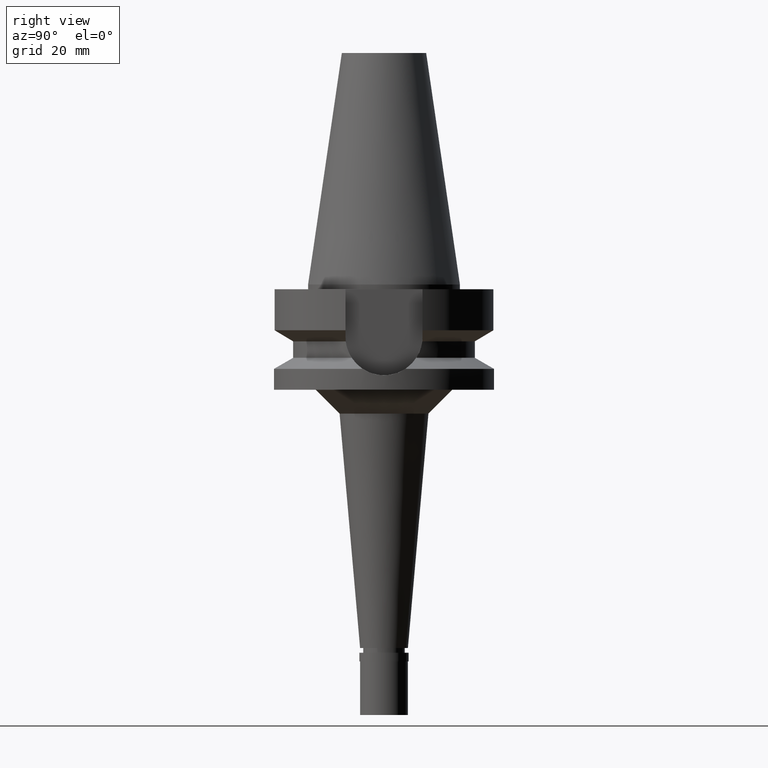
[diagram: clean part render]
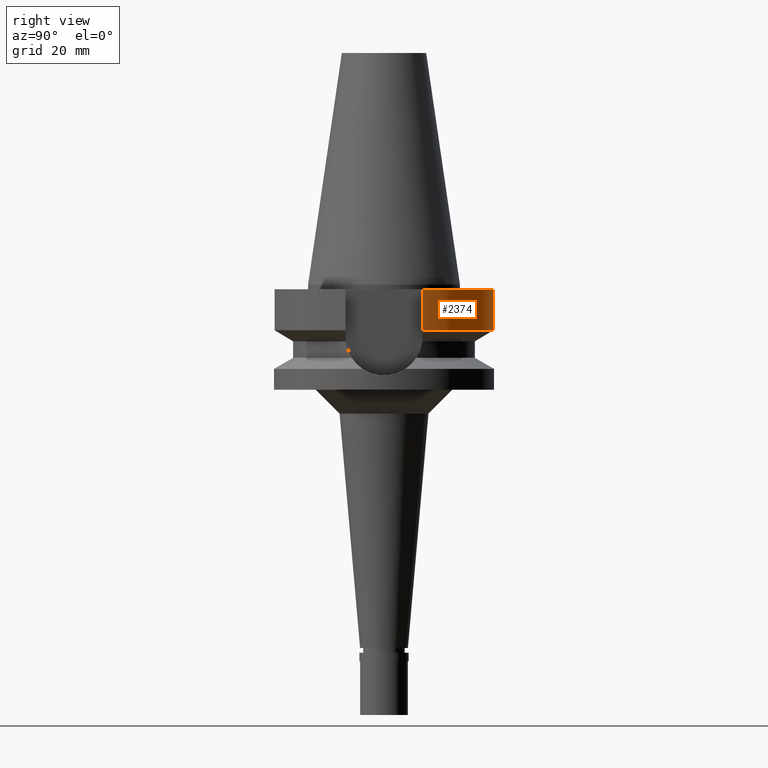
[diagram: same view with one face highlighted and labeled with its STEP entity id]
A machine part, right view. The second image highlights one B-rep face of the part: STEP entity #2374.
In plain terms, the highlighted cylindrical surface (partial cylindrical patch) has radius 23 mm, axis along (0, 0, -1).
Its self-contained STEP definition (entity closure, byte-faithful):
#46 = CARTESIAN_POINT ( 'NONE',  ( 0.0000000000000000000, 1.899855811856999906E-14, 55.13500000000000512 ) ) ;
#302 = DIRECTION ( 'NONE',  ( 0.0000000000000000000, 0.0000000000000000000, -1.000000000000000000 ) ) ;
#396 = ORIENTED_EDGE ( 'NONE', *, *, #742, .T. ) ;
#531 = CYLINDRICAL_SURFACE ( 'NONE', #730, 23.00000000000000000 ) ;
#676 = CIRCLE ( 'NONE', #2017, 23.00000000000000000 ) ;
#689 = ORIENTED_EDGE ( 'NONE', *, *, #2641, .F. ) ;
#724 = DIRECTION ( 'NONE',  ( 0.0000000000000000000, -1.000000000000000000, 0.0000000000000000000 ) ) ;
#730 = AXIS2_PLACEMENT_3D ( 'NONE', #46, #302, #724 ) ;
#742 = EDGE_CURVE ( 'NONE', #2339, #1220, #676, .T. ) ;
#759 = CARTESIAN_POINT ( 'NONE',  ( -21.54524309446999908, 8.050000000000000711, -1.000000000000000000 ) ) ;
#832 = CARTESIAN_POINT ( 'NONE',  ( -21.54524309446999908, 8.050000000000000711, -1.000000000000000000 ) ) ;
#877 = DIRECTION ( 'NONE',  ( 0.0000000000000000000, 0.0000000000000000000, 1.000000000000000000 ) ) ;
#891 = DIRECTION ( 'NONE',  ( 0.0000000000000000000, 1.000000000000000000, 0.0000000000000000000 ) ) ;
#900 = VERTEX_POINT ( 'NONE', #2832 ) ;
#909 = VERTEX_POINT ( 'NONE', #1259 ) ;
#976 = EDGE_LOOP ( 'NONE', ( #689, #396, #1297, #1783 ) ) ;
#1021 = AXIS2_PLACEMENT_3D ( 'NONE', #1992, #877, #891 ) ;
#1220 = VERTEX_POINT ( 'NONE', #1834 ) ;
#1259 = CARTESIAN_POINT ( 'NONE',  ( 21.54524325238000060, 8.049999577379001181, -9.567211146543000311 ) ) ;
#1297 = ORIENTED_EDGE ( 'NONE', *, *, #2023, .F. ) ;
#1581 = CIRCLE ( 'NONE', #1021, 23.00000000000000000 ) ;
#1759 = LINE ( 'NONE', #832, #2251 ) ;
#1783 = ORIENTED_EDGE ( 'NONE', *, *, #2721, .T. ) ;
#1790 = DIRECTION ( 'NONE',  ( 9.134698275664688685E-08, 2.444834615596914568E-07, -0.9999999999999659162 ) ) ;
#1793 = CARTESIAN_POINT ( 'NONE',  ( 0.0000000000000000000, 1.899855811856999906E-14, -1.000000000000000000 ) ) ;
#1834 = CARTESIAN_POINT ( 'NONE',  ( 21.54524309446999908, 8.050000000000000711, -1.000000000000000000 ) ) ;
#1992 = CARTESIAN_POINT ( 'NONE',  ( 0.0000000000000000000, 1.093341284896999988E-14, -9.567208369710998639 ) ) ;
#2017 = AXIS2_PLACEMENT_3D ( 'NONE', #1793, #2041, #2928 ) ;
#2023 = EDGE_CURVE ( 'NONE', #909, #1220, #2415, .T. ) ;
#2041 = DIRECTION ( 'NONE',  ( 0.0000000000000000000, 0.0000000000000000000, -1.000000000000000000 ) ) ;
#2181 = DIRECTION ( 'NONE',  ( -1.843132702715992591E-08, 4.933012910309982838E-08, 0.9999999999999985567 ) ) ;
#2217 = CARTESIAN_POINT ( 'NONE',  ( 21.54524325238000060, 8.049999577379001181, -9.567211146543000311 ) ) ;
#2244 = VECTOR ( 'NONE', #2181, 1000.000000000000114 ) ;
#2251 = VECTOR ( 'NONE', #1790, 1000.000000000000114 ) ;
#2317 = FACE_OUTER_BOUND ( 'NONE', #976, .T. ) ;
#2339 = VERTEX_POINT ( 'NONE', #759 ) ;
#2374 = ADVANCED_FACE ( 'NONE', ( #2317 ), #531, .T. ) ;
#2415 = LINE ( 'NONE', #2217, #2244 ) ;
#2641 = EDGE_CURVE ( 'NONE', #2339, #900, #1759, .T. ) ;
#2721 = EDGE_CURVE ( 'NONE', #909, #900, #1581, .T. ) ;
#2832 = CARTESIAN_POINT ( 'NONE',  ( -21.54524231189000005, 8.050002094537999753, -9.567194606710000215 ) ) ;
#2928 = DIRECTION ( 'NONE',  ( 0.0000000000000000000, 1.000000000000000000, 0.0000000000000000000 ) ) ;